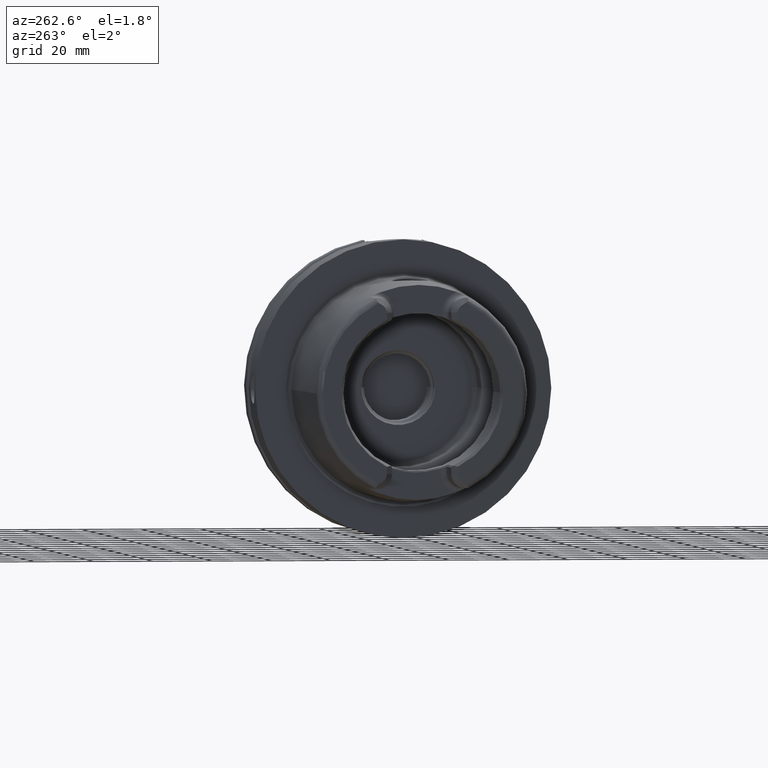
[diagram: clean part render]
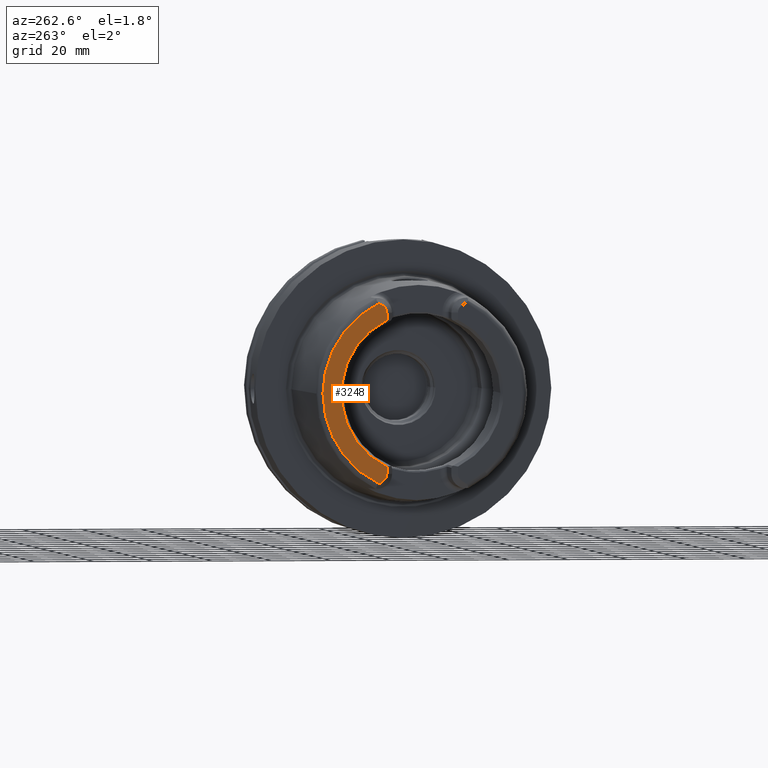
[diagram: same view with one face highlighted and labeled with its STEP entity id]
A machine part, auxiliary view. The second image highlights one B-rep face of the part: STEP entity #3248.
In plain terms, the highlighted planar face has unit normal (1, 0, 0).
Its self-contained STEP definition (entity closure, byte-faithful):
#100=DIRECTION('',(0.E0,0.E0,1.E0));
#101=VECTOR('',#100,2.370180025047E0);
#102=CARTESIAN_POINT('',(-5.E1,1.201E1,-2.696E1));
#103=LINE('',#102,#101);
#104=CARTESIAN_POINT('',(-5.E1,1.501E1,-2.696E1));
#105=DIRECTION('',(1.E0,0.E0,0.E0));
#106=DIRECTION('',(0.E0,-1.E0,0.E0));
#107=AXIS2_PLACEMENT_3D('',#104,#105,#106);
#109=DIRECTION('',(0.E0,-8.533905854017E-1,5.212720103245E-1));
#110=VECTOR('',#109,1.392150953463E0);
#111=CARTESIAN_POINT('',(-5.E1,1.463423248617E1,-3.024586108239E1));
#112=LINE('',#111,#110);
#113=DIRECTION('',(0.E0,-8.533905854017E-1,-5.212720103245E-1));
#114=VECTOR('',#113,1.392150953463E0);
#115=CARTESIAN_POINT('',(-5.E1,1.463423248617E1,3.024586108239E1));
#116=LINE('',#115,#114);
#117=CARTESIAN_POINT('',(-5.E1,1.501E1,2.696E1));
#118=DIRECTION('',(-1.E0,0.E0,0.E0));
#119=DIRECTION('',(0.E0,-1.E0,0.E0));
#120=AXIS2_PLACEMENT_3D('',#117,#118,#119);
#122=DIRECTION('',(0.E0,0.E0,1.E0));
#123=VECTOR('',#122,2.370180025047E0);
#124=CARTESIAN_POINT('',(-5.E1,1.201E1,2.458981997495E1));
#125=LINE('',#124,#123);
#157=CARTESIAN_POINT('',(-5.E1,0.E0,0.E0));
#158=DIRECTION('',(1.E0,0.E0,0.E0));
#159=DIRECTION('',(0.E0,4.388653384185E-1,-8.985528447091E-1));
#160=AXIS2_PLACEMENT_3D('',#157,#158,#159);
#340=CARTESIAN_POINT('',(-5.E1,0.E0,0.E0));
#341=DIRECTION('',(-1.E0,0.E0,0.E0));
#342=DIRECTION('',(0.E0,4.355401503799E-1,9.001693048572E-1));
#343=AXIS2_PLACEMENT_3D('',#340,#341,#342);
#2783=CARTESIAN_POINT('',(-5.E1,1.201E1,2.458981997495E1));
#2784=CARTESIAN_POINT('',(-5.E1,1.201E1,2.696E1));
#2785=VERTEX_POINT('',#2783);
#2786=VERTEX_POINT('',#2784);
#2787=CARTESIAN_POINT('',(-5.E1,1.344618396903E1,2.952017175621E1));
#2788=VERTEX_POINT('',#2787);
#2789=CARTESIAN_POINT('',(-5.E1,1.463423248617E1,3.024586108239E1));
#2790=VERTEX_POINT('',#2789);
#2874=CARTESIAN_POINT('',(-5.E1,1.201E1,-2.696E1));
#2875=CARTESIAN_POINT('',(-5.E1,1.201E1,-2.458981997495E1));
#2876=VERTEX_POINT('',#2874);
#2877=VERTEX_POINT('',#2875);
#2878=CARTESIAN_POINT('',(-5.E1,1.344618396903E1,-2.952017175621E1));
#2879=VERTEX_POINT('',#2878);
#2880=CARTESIAN_POINT('',(-5.E1,1.463423248617E1,-3.024586108239E1));
#2881=VERTEX_POINT('',#2880);
#3225=CARTESIAN_POINT('',(-5.E1,0.E0,0.E0));
#3226=DIRECTION('',(1.E0,0.E0,0.E0));
#3227=DIRECTION('',(0.E0,-1.E0,0.E0));
#3228=AXIS2_PLACEMENT_3D('',#3225,#3226,#3227);
#3229=PLANE('',#3228);
#3231=ORIENTED_EDGE('',*,*,#3230,.F.);
#3233=ORIENTED_EDGE('',*,*,#3232,.T.);
#3235=ORIENTED_EDGE('',*,*,#3234,.F.);
#3237=ORIENTED_EDGE('',*,*,#3236,.F.);
#3239=ORIENTED_EDGE('',*,*,#3238,.T.);
#3241=ORIENTED_EDGE('',*,*,#3240,.F.);
#3243=ORIENTED_EDGE('',*,*,#3242,.F.);
#3245=ORIENTED_EDGE('',*,*,#3244,.F.);
#3246=EDGE_LOOP('',(#3231,#3233,#3235,#3237,#3239,#3241,#3243,#3245));
#3247=FACE_OUTER_BOUND('',#3246,.F.);
#3248=ADVANCED_FACE('',(#3247),#3229,.F.);
#108=CIRCLE('',#107,3.E0);
#121=CIRCLE('',#120,3.E0);
#161=CIRCLE('',#160,2.736602540378E1);
#344=CIRCLE('',#343,3.360019156306E1);
#3230=EDGE_CURVE('',#2876,#2877,#103,.T.);
#3232=EDGE_CURVE('',#2876,#2879,#108,.T.);
#3234=EDGE_CURVE('',#2881,#2879,#112,.T.);
#3236=EDGE_CURVE('',#2790,#2881,#344,.T.);
#3238=EDGE_CURVE('',#2790,#2788,#116,.T.);
#3240=EDGE_CURVE('',#2786,#2788,#121,.T.);
#3242=EDGE_CURVE('',#2785,#2786,#125,.T.);
#3244=EDGE_CURVE('',#2877,#2785,#161,.T.);